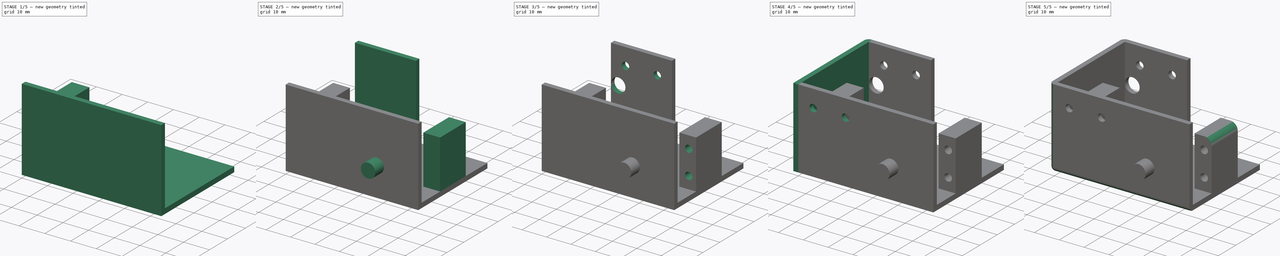
[diagram: build sequence overview — one tinted view per stage of 5, left to right]
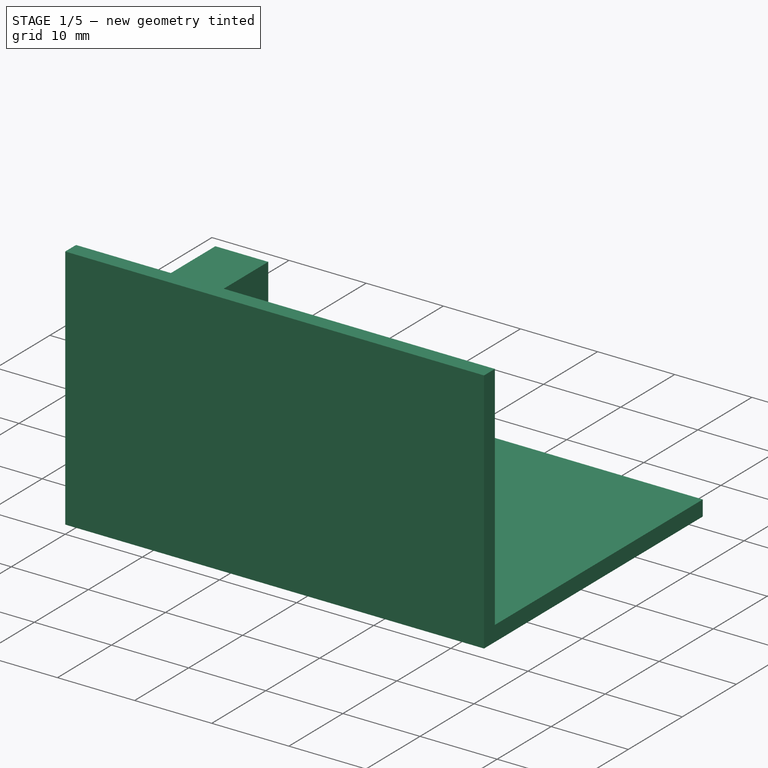
[diagram: stage 1 of 5 — iso view after this stage's code; geometry added in this stage tinted green]
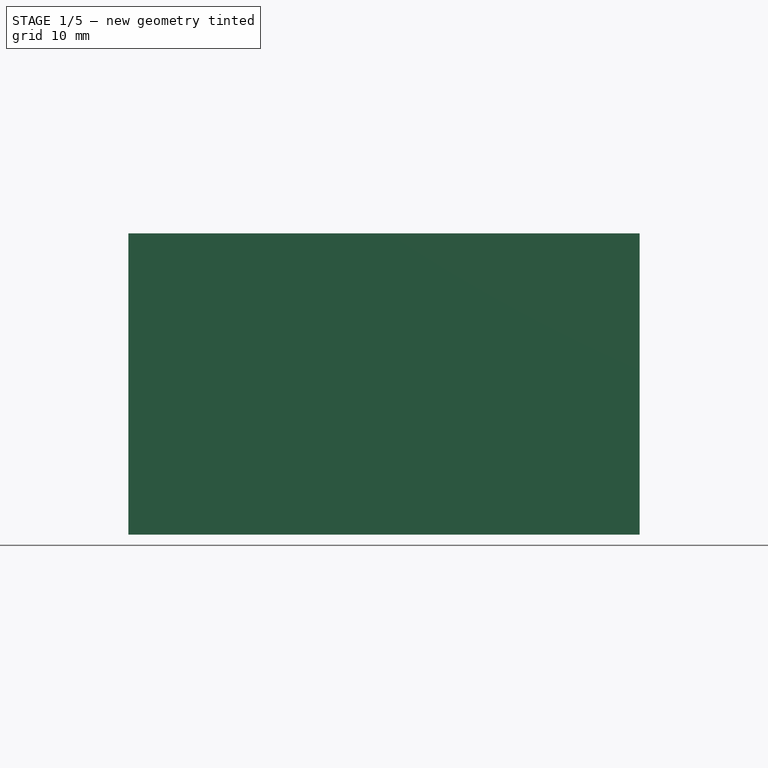
[diagram: stage 1 of 5 — front view after this stage's code; geometry added in this stage tinted green]
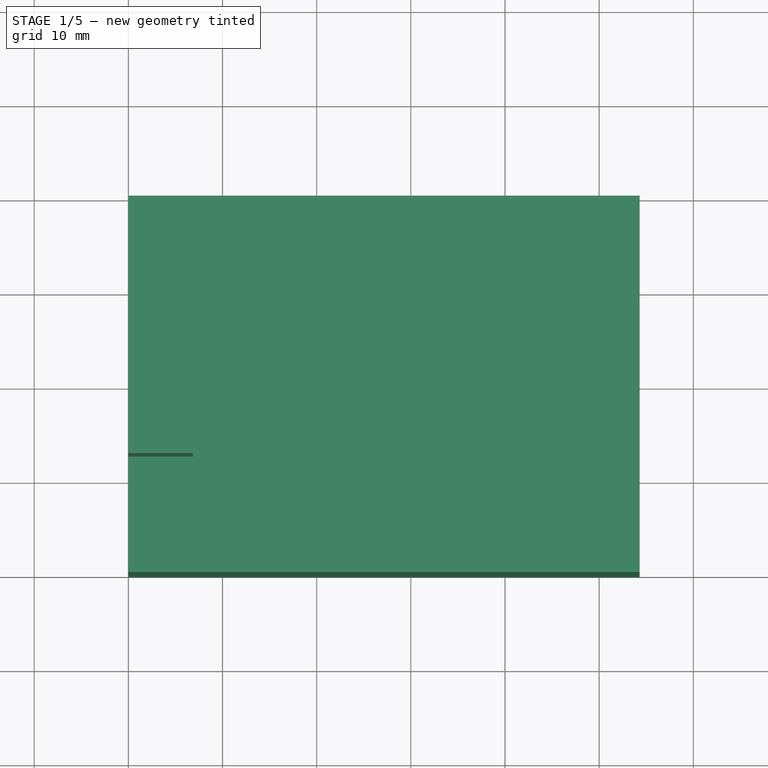
[diagram: stage 1 of 5 — top view after this stage's code; geometry added in this stage tinted green]
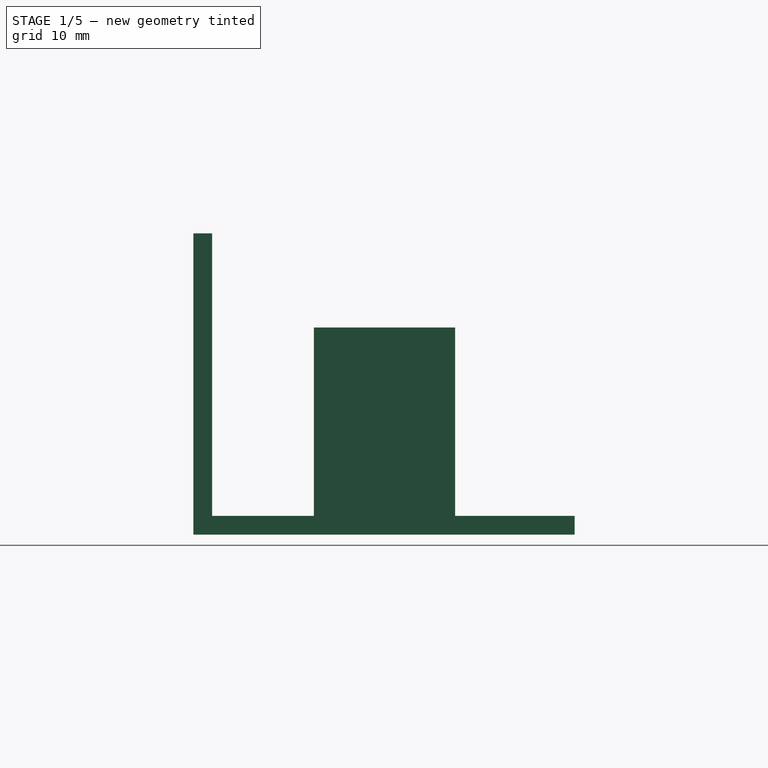
[diagram: stage 1 of 5 — right view after this stage's code; geometry added in this stage tinted green]
FCSTD DOCUMENT  (FreeCAD 0.20R29177 +426 (Git))
Label: 6R_NEW_hip
License: All rights reserved
LicenseURL: http://en.wikipedia.org/wiki/All_rights_reserved
objects: Sketcher::SketchObject×11, PartDesign::Pad×7, PartDesign::Pocket×4, PartDesign::Fillet×4, Spreadsheet::Sheet×1, PartDesign::Body×1
note: 42 computed .brp shape members not serialized (recipe doc carries the construction recipe); baked Part::Feature solids carry a one-line shape summary decoded from their .brp

FEATURE [Spreadsheet::Sheet] Spreadsheet
  cells = A1=tolerance; B1(tolerance)=0.2; A2=thickness; B2(thickness)=2; A3=servo_outer_x; B3(servo_x)=54.3; A4=servo_inner_x; B4(servo_inner_x)=40.2; A5=servo_y; B5(servo_y)=38.5; D5=sketch 41,5 real 38,0; A6=servo_z; B6(servo_z)=20; A7=foothold_hole_len; B7(foothold_hole_len)=40; A8=foothold_y_len; B8(foothold_y_len)=15; A9=foothold_y_pos; B9(foothold_y_pos)==25.8 + B2; C9=c; D9=sketch 27.8 real 25,1; A10=foothold_z_len; B10(foothold_z_len)==B6; C10=c; A11=foothold_x_len; B11(foothold_x_len)==(B3 - B4) / 2 - B1; C11=c; A12=upper_hole_z_pos; B12(upper_hole_z_pos)==15 + B2; C12=c; A13=lower_hole_z_pos; B13(lower_hole_z_pos)==5 + B2; C13=c; A14=hole_x_pos; B14(hole_x_pos)=-3; A15=hole_diameter; B15(hole_diameter)=3; A16=axis_x_pos; B16(axis_x_pos)=37.25; A17=axis_z_pos; B17(axis_z_pos)==10 + B2; A18=axis_y_pos; B18(axis_y_pos)=0; A19=axis_diameter; B19(axis_diameter)=5.9; A20=axis_length; B20(axis_length)=5; A21=plate_y_dim; B21(plate_y_dim)==B5 + B2; C21=c; A22=hip_front_half_inner; B22(hip_front_half_inner)==30 + B2; C22=c; A23=hib_back_half_outer; B23(hib_back_half_outer)=42; A24=hip_back_full_outer; B24(hip_back_full_outer)==2 * B22; A25=hip_front_half_inner_len; B25(hip_front_half_inner_len)=25
FEATURE [Sketcher::SketchObject] Sketch  label="basePlateSketch"
  FullyConstrained = true
  MapMode = 5
  Support = -> [XY_Plane]
  expr: Constraints[10] = Spreadsheet.servo_y
  expr: Constraints[11] = Spreadsheet.thickness
  expr: Constraints[9] = Spreadsheet.servo_x
  sketch-geometry (4):
    g0: LineSegment StartX=0 StartY=40.5 StartZ=0 EndX=54.3 EndY=40.5 EndZ=0
    g1: LineSegment StartX=54.3 StartY=40.5 StartZ=0 EndX=54.3 EndY=2 EndZ=0
    g2: LineSegment StartX=54.3 StartY=2 StartZ=0 EndX=0 EndY=2 EndZ=0
    g3: LineSegment StartX=0 StartY=2 StartZ=0 EndX=0 EndY=40.5 EndZ=0
  constraints (12):
    c: Coincident(g0,g1)
    c: Coincident(g1,g2)
    c: Coincident(g2,g3)
    c: Coincident(g3,g0)
    c: Horizontal(g0)
    c: Horizontal(g2)
    c: Vertical(g1)
    c: Vertical(g3)
    c: PointOnObject(g0,g-2)
    c: DistanceX(g2,g2) = 54.3
    c: DistanceY(g3,g3) = 38.5
    c: DistanceY(g-1,g2) = 2
FEATURE [PartDesign::Pad] Pad  label="basePlatePad"
  Direction = (0,0,1)
  Length = 2
  Length2 = 10
  Profile = -> Sketch
  ReferenceAxis = -> Sketch [N_Axis]
  Type = 0
  expr: Length = Spreadsheet.thickness
FEATURE [Sketcher::SketchObject] Sketch001  label="backPadSketch"
  ExternalGeometry = -> [Pad]
  FullyConstrained = true
  MapMode = 5
  Support = -> [XY_Plane]
  sketch-geometry (4):
    g0: LineSegment StartX=0 StartY=0 StartZ=0 EndX=54.3 EndY=0 EndZ=0
    g1: LineSegment StartX=54.3 StartY=0 StartZ=0 EndX=54.3 EndY=2 EndZ=0
    g2: LineSegment StartX=54.3 StartY=2 StartZ=0 EndX=0 EndY=2 EndZ=0
    g3: LineSegment StartX=0 StartY=2 StartZ=0 EndX=0 EndY=0 EndZ=0
  constraints (10):
    c: Coincident(g0,g1)
    c: Coincident(g1,g2)
    c: Coincident(g2,g3)
    c: Coincident(g3,g0)
    c: Horizontal(g0)
    c: Horizontal(g2)
    c: Vertical(g1)
    c: Vertical(g3)
    c: Coincident(g0,g-1)
    c: Coincident(g1,g-3)
FEATURE [Sketcher::SketchObject] Sketch003  label="leftFootholdSketch"
  FullyConstrained = true
  MapMode = 5
  Placement = pos=(0,0,2) rot=(0,0,1;0rad)
  expr: Constraints[10] = Spreadsheet.foothold_y_len
  expr: Constraints[11] = Spreadsheet.foothold_x_len
  expr: Constraints[9] = Spreadsheet.foothold_y_pos
  sketch-geometry (4):
    g0: LineSegment StartX=0 StartY=27.8 StartZ=0 EndX=6.85 EndY=27.8 EndZ=0
    g1: LineSegment StartX=6.85 StartY=27.8 StartZ=0 EndX=6.85 EndY=12.8 EndZ=0
    g2: LineSegment StartX=6.85 StartY=12.8 StartZ=0 EndX=0 EndY=12.8 EndZ=0
    g3: LineSegment StartX=0 StartY=12.8 StartZ=0 EndX=0 EndY=27.8 EndZ=0
  constraints (12):
    c: Coincident(g0,g1)
    c: Coincident(g1,g2)
    c: Coincident(g2,g3)
    c: Coincident(g3,g0)
    c: Horizontal(g0)
    c: Horizontal(g2)
    c: Vertical(g1)
    c: Vertical(g3)
    c: PointOnObject(g0,g-2)
    c: DistanceY(g-1,g0) = 27.8
    c: DistanceY(g2,g0) = 15
    c: DistanceX(g2,g1) = 6.85
FEATURE [PartDesign::Pad] Pad001  label="leftFootholdPad"
  BaseFeature = -> Pad
  Direction = (0,0,1)
  Length = 20
  Length2 = 10
  Profile = -> Sketch003
  ReferenceAxis = -> Sketch003 [N_Axis]
  Type = 0
  expr: Length = Spreadsheet.foothold_z_len
FEATURE [PartDesign::Pad] Pad003  label="backPad"
  BaseFeature = -> Pad001
  Direction = (0,0,1)
  Length = 32
  Length2 = 10
  Profile = -> Sketch001
  ReferenceAxis = -> Sketch001 [N_Axis]
  Type = 0
  expr: Length = Spreadsheet.hip_front_half_inner
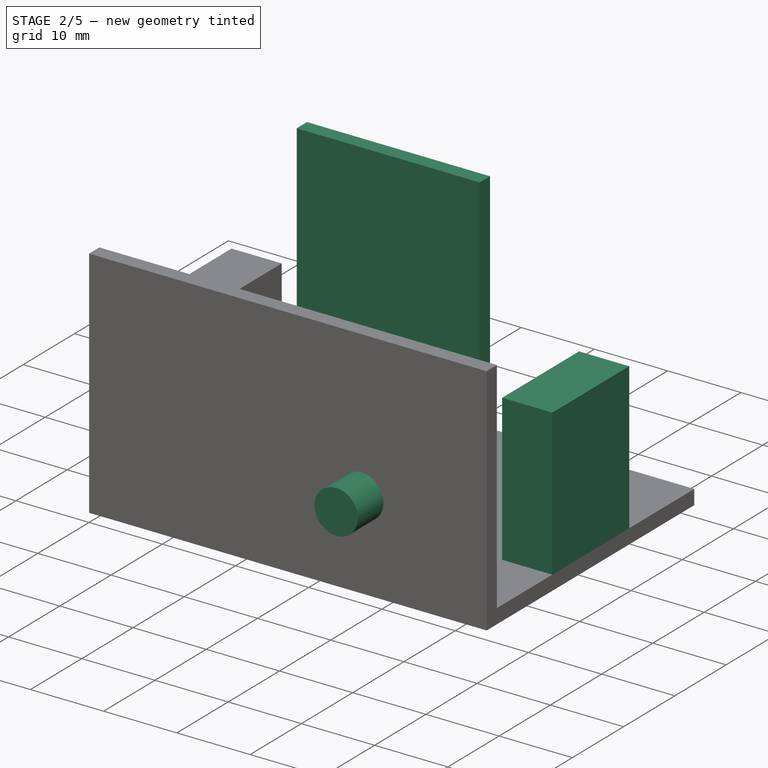
[diagram: stage 2 of 5 — iso view after this stage's code; geometry added in this stage tinted green]
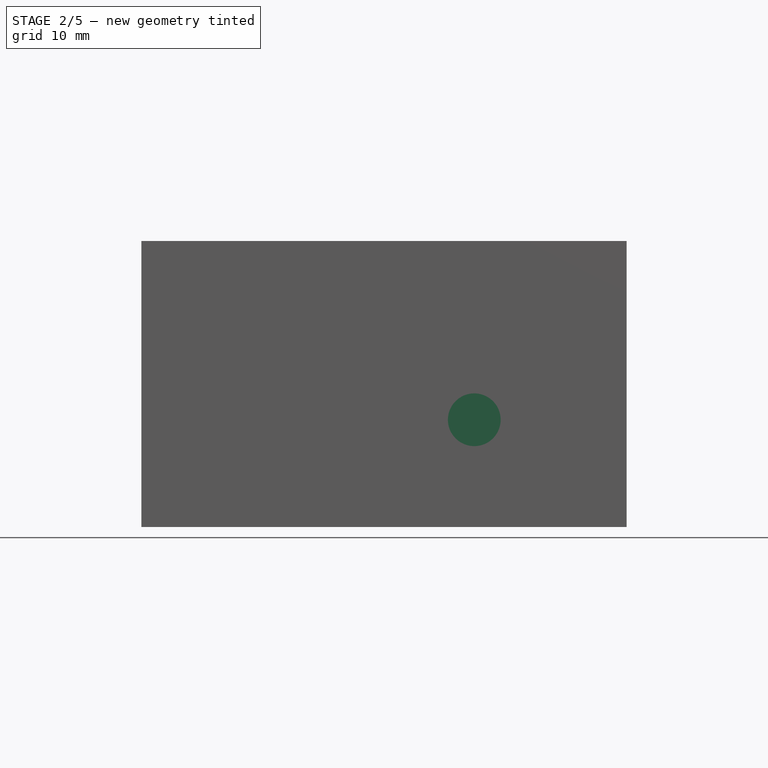
[diagram: stage 2 of 5 — front view after this stage's code; geometry added in this stage tinted green]
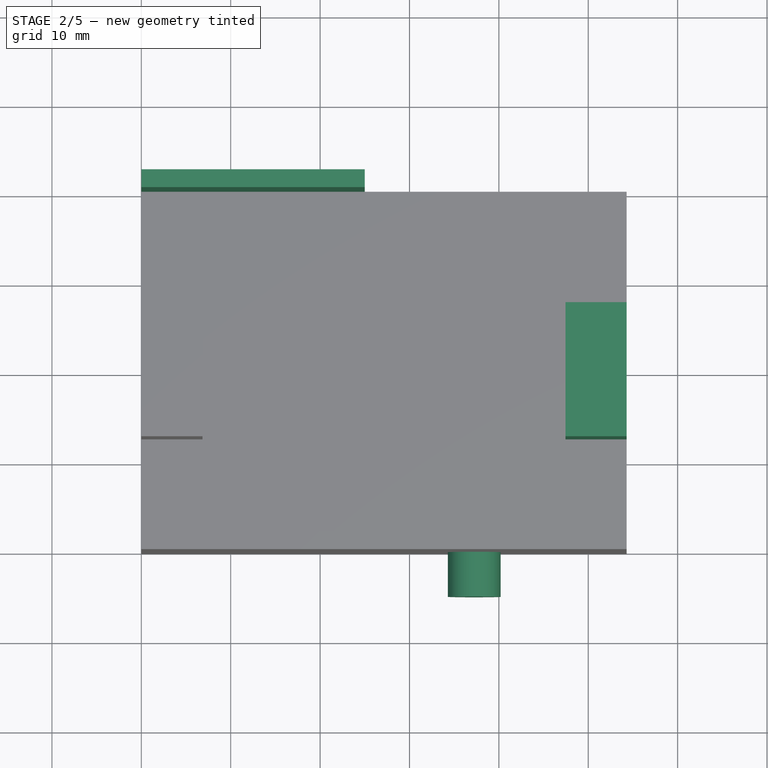
[diagram: stage 2 of 5 — top view after this stage's code; geometry added in this stage tinted green]
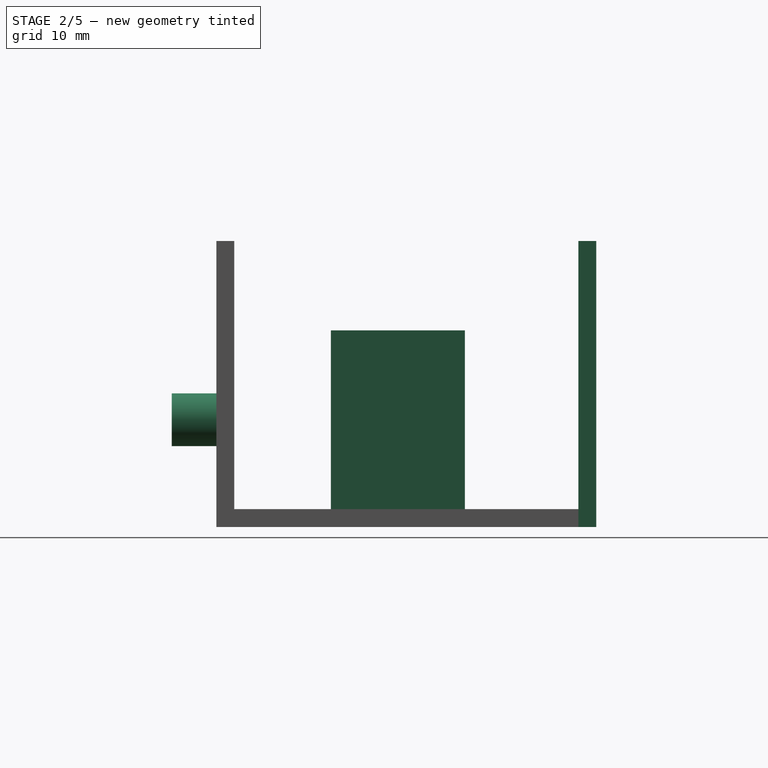
[diagram: stage 2 of 5 — right view after this stage's code; geometry added in this stage tinted green]
FEATURE [Sketcher::SketchObject] Sketch005  label="rightFootholdSketch"
  ExternalGeometry = -> [Pad003]
  FullyConstrained = true
  MapMode = 5
  Placement = pos=(0,0,2) rot=(0,0,1;0rad)
  Support = -> [Pad003]
  expr: Constraints[10] = Spreadsheet.foothold_y_pos
  expr: Constraints[8] = Spreadsheet.foothold_y_len
  expr: Constraints[9] = Spreadsheet.foothold_x_len
  sketch-geometry (4):
    g0: LineSegment StartX=47.45 StartY=27.8 StartZ=0 EndX=54.3 EndY=27.8 EndZ=0
    g1: LineSegment StartX=54.3 StartY=27.8 StartZ=0 EndX=54.3 EndY=12.8 EndZ=0
    g2: LineSegment StartX=54.3 StartY=12.8 StartZ=0 EndX=47.45 EndY=12.8 EndZ=0
    g3: LineSegment StartX=47.45 StartY=12.8 StartZ=0 EndX=47.45 EndY=27.8 EndZ=0
  constraints (12):
    c: Coincident(g0,g1)
    c: Coincident(g1,g2)
    c: Coincident(g2,g3)
    c: Coincident(g3,g0)
    c: Horizontal(g0)
    c: Horizontal(g2)
    c: Vertical(g1)
    c: Vertical(g3)
    c: DistanceY(g1,g0) = 15
    c: DistanceX(g0,g0) = 6.85
    c: DistanceY(g-1,g0) = 27.8
    c: Vertical(g0,g-3)
FEATURE [PartDesign::Pad] Pad004  label="rightFootholdPad"
  BaseFeature = -> Pad003
  Direction = (0,0,1)
  Length = 20
  Length2 = 10
  Profile = -> Sketch005
  ReferenceAxis = -> Sketch005 [N_Axis]
  Type = 0
  expr: Length = Spreadsheet.foothold_z_len
FEATURE [Sketcher::SketchObject] Sketch002  label="backAxisSketch"
  FullyConstrained = true
  MapMode = 5
  Placement = pos=(0,0,0) rot=(1,0,0;1.5708rad)
  Support = -> [Pad004]
  expr: Constraints[0] = Spreadsheet.axis_diameter
  expr: Constraints[1] = Spreadsheet.axis_x_pos
  expr: Constraints[2] = Spreadsheet.axis_z_pos
  sketch-geometry (1):
    g0: Circle CenterX=37.25 CenterY=12 CenterZ=0 NormalX=0 NormalY=0 NormalZ=1 AngleXU=0 Radius=2.95
  constraints (3):
    c: Diameter(g0) = 5.9
    c: DistanceX(g-1,g0) = 37.25
    c: DistanceY(g-1,g0) = 12
FEATURE [PartDesign::Pad] Pad005  label="backAxisPad"
  BaseFeature = -> Pad004
  Direction = (0,-1,2e-16)
  Length = 5
  Length2 = 10
  Profile = -> Sketch002
  ReferenceAxis = -> Sketch002 [N_Axis]
  Type = 0
  expr: Length = Spreadsheet.axis_length
FEATURE [Sketcher::SketchObject] Sketch007  label="frontPlateSketch"
  FullyConstrained = true
  MapMode = 5
  Placement = pos=(0,40.5,0) rot=(0,0.707107,0.707107;3.14159rad)
  Support = -> [Pad005]
  expr: Constraints[10] = Spreadsheet.hip_front_half_inner_len
  expr: Constraints[9] = Spreadsheet.hip_front_half_inner
  sketch-geometry (4):
    g0: LineSegment StartX=-25 StartY=32 StartZ=0 EndX=0 EndY=32 EndZ=0
    g1: LineSegment StartX=0 StartY=32 StartZ=0 EndX=0 EndY=0 EndZ=0
    g2: LineSegment StartX=0 StartY=0 StartZ=0 EndX=-25 EndY=0 EndZ=0
    g3: LineSegment StartX=-25 StartY=0 StartZ=0 EndX=-25 EndY=32 EndZ=0
  constraints (11):
    c: Coincident(g0,g1)
    c: Coincident(g1,g2)
    c: Coincident(g2,g3)
    c: Coincident(g3,g0)
    c: Horizontal(g0)
    c: Horizontal(g2)
    c: Vertical(g1)
    c: Vertical(g3)
    c: Coincident(g1,g-1)
    c: DistanceY(g1,g1) = 32
    c: DistanceX(g0,g0) = 25
FEATURE [PartDesign::Pad] Pad006  label="frontPlatePad"
  BaseFeature = -> Pad005
  Direction = (0,1,-2e-16)
  Length = 2
  Length2 = 10
  Profile = -> Sketch007
  ReferenceAxis = -> Sketch007 [N_Axis]
  Type = 0
  expr: Length = Spreadsheet.thickness
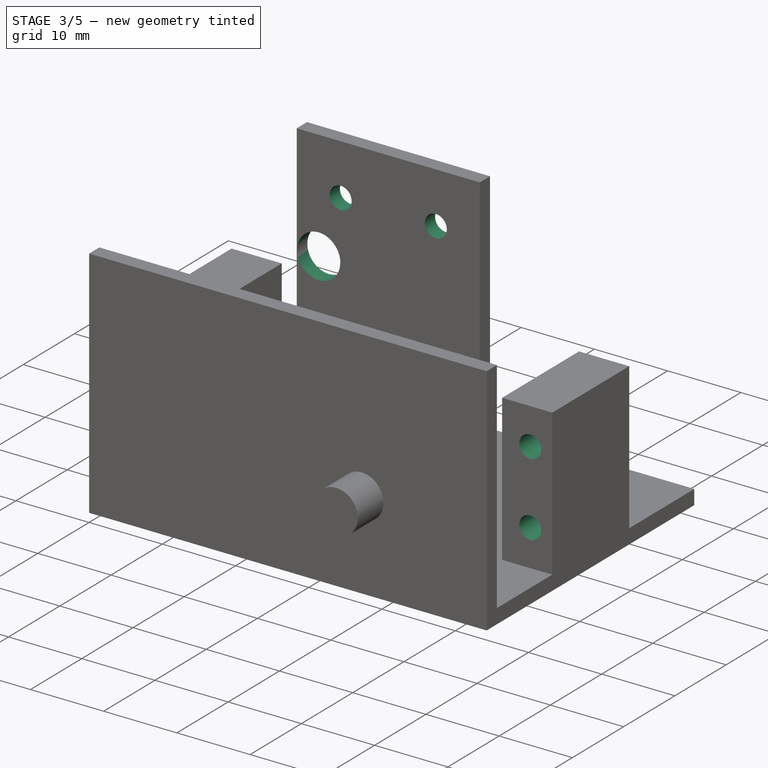
[diagram: stage 3 of 5 — iso view after this stage's code; geometry added in this stage tinted green]
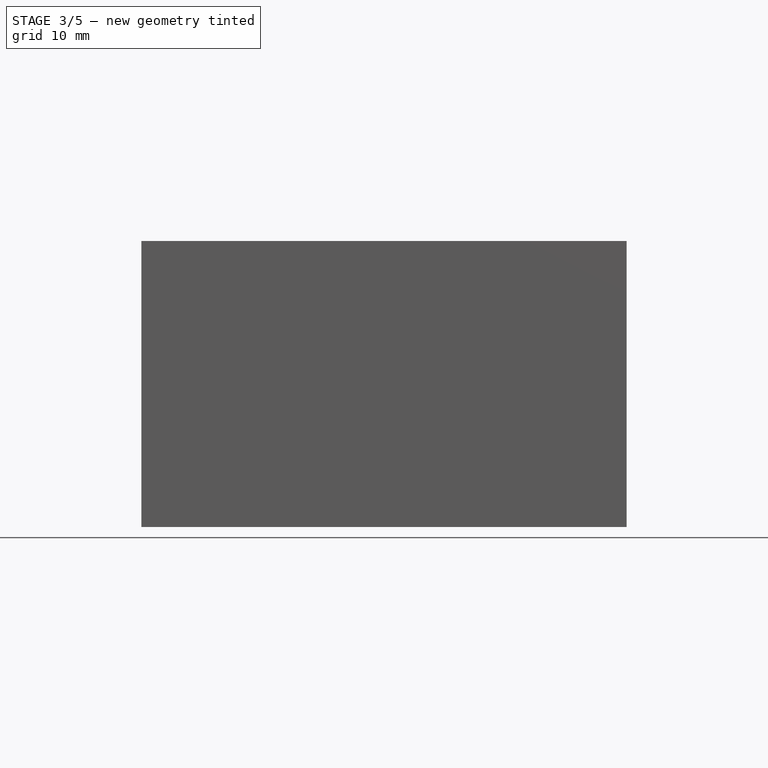
[diagram: stage 3 of 5 — front view after this stage's code; geometry added in this stage tinted green]
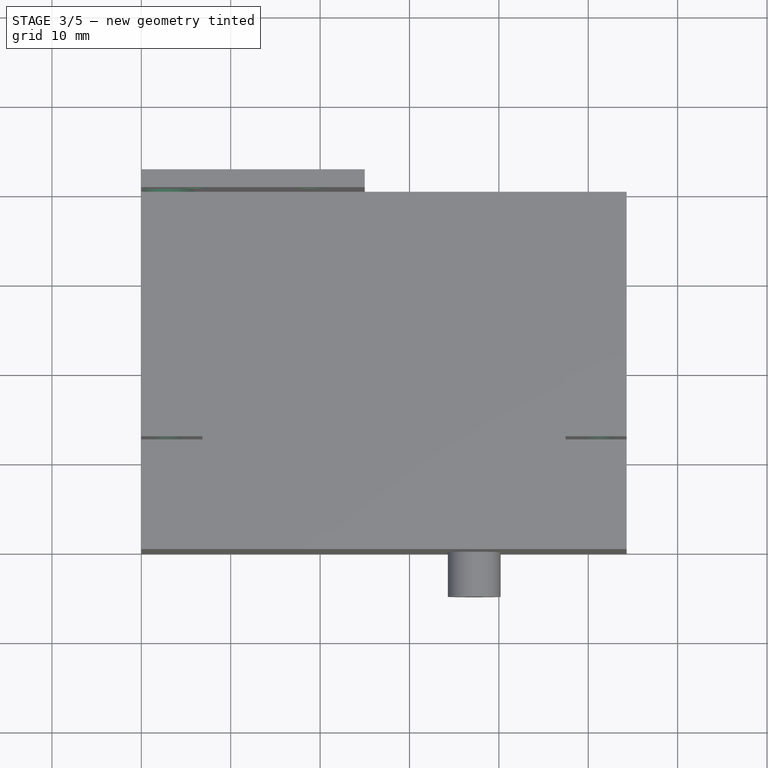
[diagram: stage 3 of 5 — top view after this stage's code; geometry added in this stage tinted green]
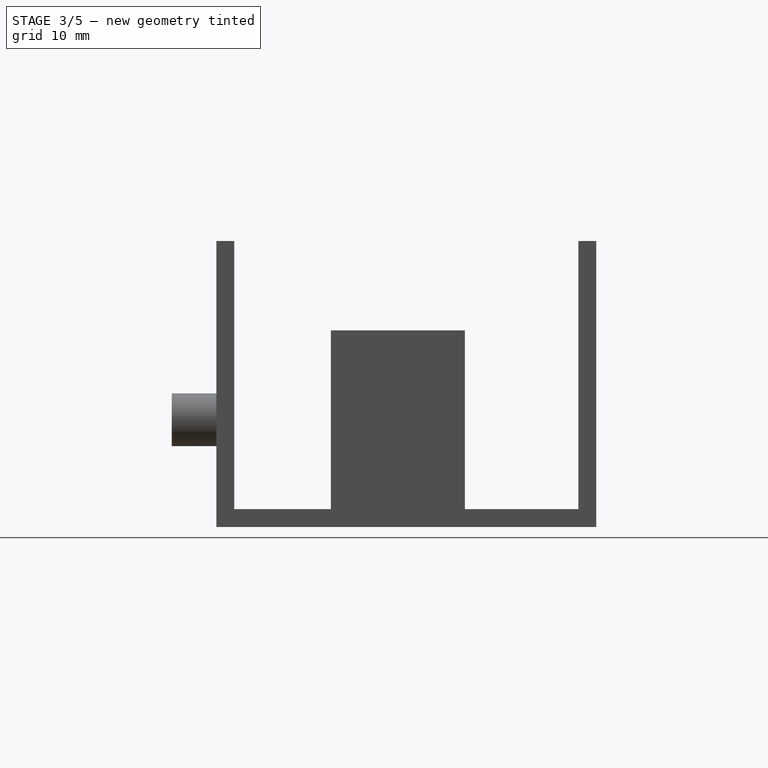
[diagram: stage 3 of 5 — right view after this stage's code; geometry added in this stage tinted green]
FEATURE [Sketcher::SketchObject] Sketch006  label="rightFootholeSketch"
  ExternalGeometry = -> [Pad006]
  FullyConstrained = true
  MapMode = 5
  Placement = pos=(0,12.8,0) rot=(1,0,0;1.5708rad)
  Support = -> [Pad006]
  expr: Constraints[0] = Spreadsheet.hole_diameter
  expr: Constraints[1] = Spreadsheet.hole_diameter
  expr: Constraints[2] = Spreadsheet.lower_hole_z_pos
  expr: Constraints[3] = Spreadsheet.upper_hole_z_pos
  expr: Constraints[4] = -Spreadsheet.hole_x_pos
  sketch-geometry (2):
    g0: Circle CenterX=51.3 CenterY=17 CenterZ=0 NormalX=0 NormalY=0 NormalZ=1 AngleXU=0 Radius=1.5
    g1: Circle CenterX=51.3 CenterY=7 CenterZ=0 NormalX=0 NormalY=0 NormalZ=1 AngleXU=0 Radius=1.5
  constraints (6):
    c: Diameter(g1) = 3
    c: Diameter(g0) = 3
    c: DistanceY(g-4,g1) = 7
    c: DistanceY(g-4,g0) = 17
    c: DistanceX(g1,g-4) = 3
    c: Vertical(g1,g0)
FEATURE [PartDesign::Pocket] Pocket  label="rightFootholePocket"
  BaseFeature = -> Pad006
  Direction = (0,1,-2e-16)
  Length = 15
  Length2 = 5
  Profile = -> Sketch006
  ReferenceAxis = -> Sketch006 [N_Axis]
  Type = 0
  expr: Length = Spreadsheet.foothold_y_len
FEATURE [Sketcher::SketchObject] Sketch004  label="leftFootholeSketch"
  FullyConstrained = true
  MapMode = 5
  Placement = pos=(0,12.8,0) rot=(1,0,0;1.5708rad)
  Support = -> [Pocket]
  expr: Constraints[0] = Spreadsheet.upper_hole_z_pos
  expr: Constraints[1] = Spreadsheet.lower_hole_z_pos
  expr: Constraints[2] = Spreadsheet.hole_x_pos
  expr: Constraints[4] = Spreadsheet.hole_diameter
  expr: Constraints[5] = Spreadsheet.hole_diameter
  sketch-geometry (2):
    g0: Circle CenterX=3 CenterY=17 CenterZ=0 NormalX=0 NormalY=0 NormalZ=1 AngleXU=0 Radius=1.5
    g1: Circle CenterX=3 CenterY=7 CenterZ=0 NormalX=0 NormalY=0 NormalZ=1 AngleXU=0 Radius=1.5
  constraints (6):
    c: DistanceY(g-1,g0) = 17
    c: DistanceY(g-1,g1) = 7
    c: DistanceX(g1,g-1) = -3
    c: Vertical(g0,g1)
    c: Diameter(g1) = 3
    c: Diameter(g0) = 3
FEATURE [PartDesign::Pocket] Pocket001  label="leftFootholePocket"
  BaseFeature = -> Pocket
  Direction = (0,1,-2e-16)
  Length = 20
  Length2 = 5
  Profile = -> Sketch004
  ReferenceAxis = -> Sketch004 [N_Axis]
  Type = 0
  expr: Length = 20
FEATURE [Sketcher::SketchObject] Sketch009  label="frontHoleSketch"
  ExternalGeometry = -> [Pocket001]
  FullyConstrained = true
  MapMode = 5
  Placement = pos=(0,42.5,-9.4e-15) rot=(0,0.707107,0.707107;3.14159rad)
  Support = -> [Pocket001]
  expr: Constraints[10] = Spreadsheet.lower_hole_z_pos
  expr: Constraints[11] = Spreadsheet.upper_hole_z_pos
  expr: Constraints[5] = Spreadsheet.hole_diameter
  sketch-geometry (4):
    g0: Circle CenterX=-6 CenterY=25 CenterZ=0 NormalX=0 NormalY=0 NormalZ=1 AngleXU=0 Radius=1.5
    g1: Circle CenterX=-19 CenterY=25 CenterZ=0 NormalX=0 NormalY=0 NormalZ=1 AngleXU=0 Radius=1.5
    g2: Circle CenterX=-3 CenterY=7 CenterZ=0 NormalX=0 NormalY=0 NormalZ=1 AngleXU=0 Radius=2.95
    g3: Circle CenterX=-3 CenterY=17 CenterZ=0 NormalX=0 NormalY=0 NormalZ=1 AngleXU=0 Radius=2.95
  constraints (12):
    c: Horizontal(g0,g1)
    c: DistanceY(g-3,g1) = 25
    c: DistanceX(g1,g0) = 13
    c: DistanceX(g-3,g1) = 6
    c: Equal(g0,g1)
    c: Diameter(g0) = 3
    c: Equal(g3,g2)
    c: Diameter(g3) = 5.9
    c: Vertical(g2,g3)
    c: DistanceX(g2,g-1) = 3
    c: DistanceY(g-1,g2) = 7
    c: DistanceY(g-1,g3) = 17
FEATURE [PartDesign::Pocket] Pocket002  label="frontHolePocket"
  BaseFeature = -> Pocket001
  Direction = (0,-1,2e-16)
  Length = 2
  Length2 = 5
  Profile = -> Sketch009
  ReferenceAxis = -> Sketch009 [N_Axis]
  Type = 0
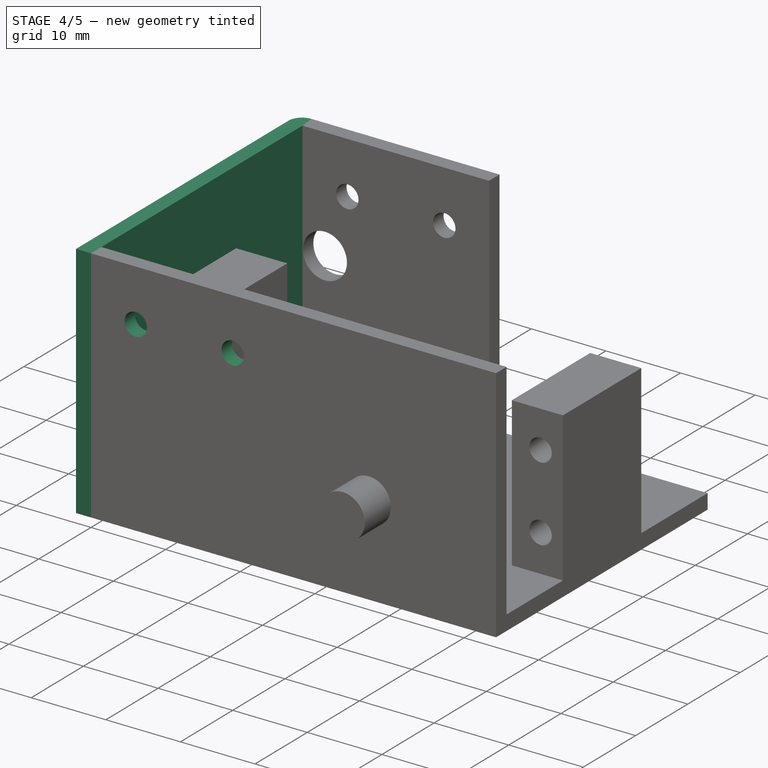
[diagram: stage 4 of 5 — iso view after this stage's code; geometry added in this stage tinted green]
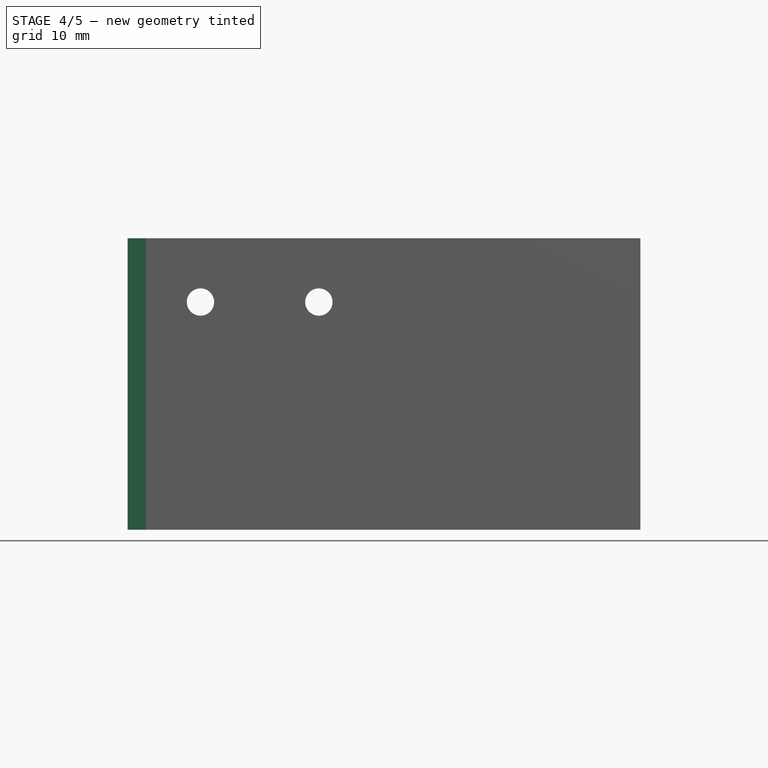
[diagram: stage 4 of 5 — front view after this stage's code; geometry added in this stage tinted green]
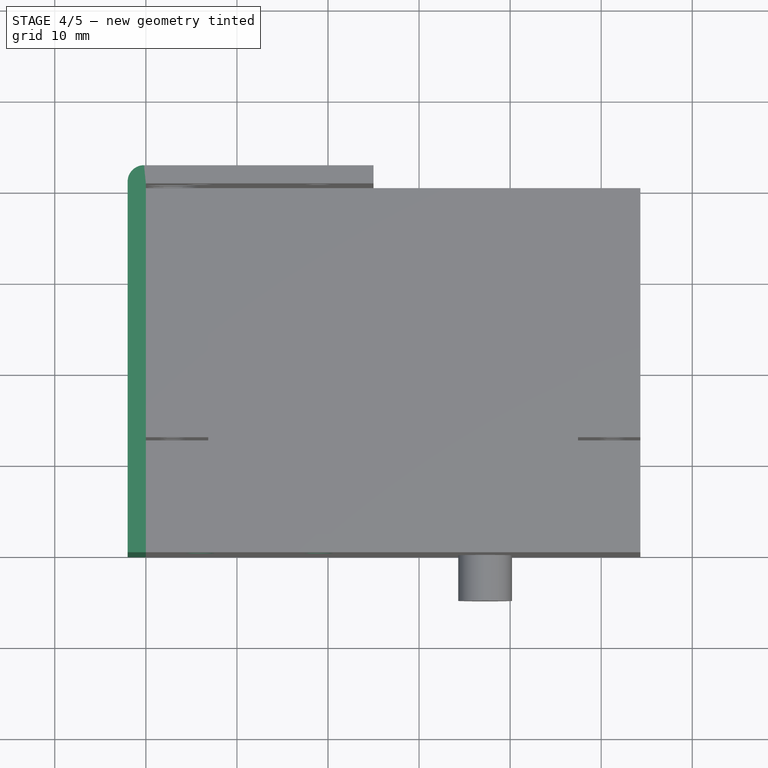
[diagram: stage 4 of 5 — top view after this stage's code; geometry added in this stage tinted green]
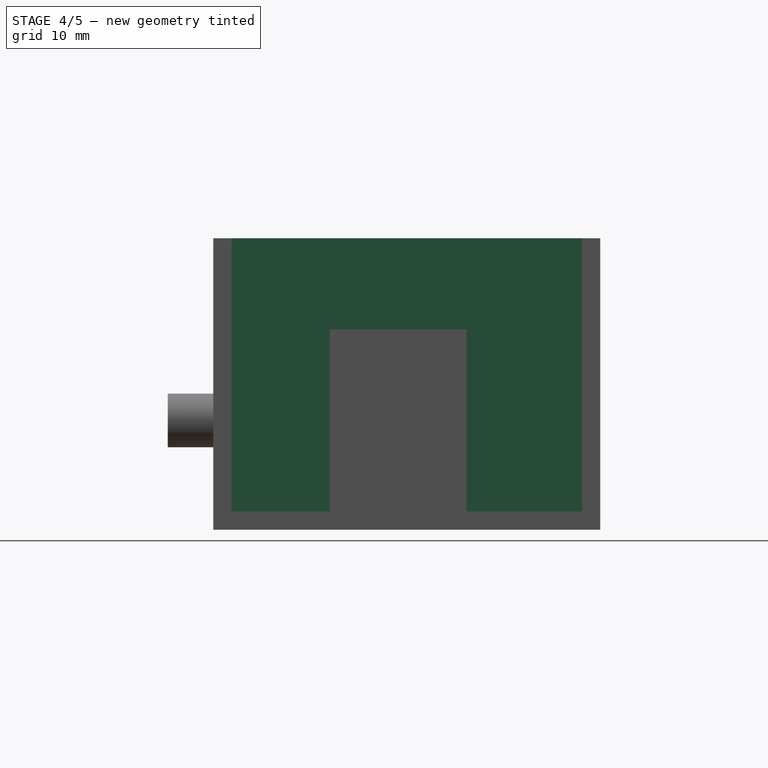
[diagram: stage 4 of 5 — right view after this stage's code; geometry added in this stage tinted green]
FEATURE [Sketcher::SketchObject] Sketch008  label="footholdBackSketch"
  ExternalGeometry = -> [Pocket002]
  FullyConstrained = false
  MapMode = 5
  Placement = pos=(0,0,0) rot=(1,0,0;1.5708rad)
  Support = -> [XZ_Plane]
  expr: Constraints[2] = 3
  sketch-geometry (2):
    g0: Circle CenterX=19 CenterY=25 CenterZ=0 NormalX=0 NormalY=0 NormalZ=1 AngleXU=0 Radius=1.5
    g1: Circle CenterX=6 CenterY=25 CenterZ=0 NormalX=0 NormalY=0 NormalZ=1 AngleXU=0 Radius=1.5
  constraints (4):
    c: Horizontal(g0,g1)
    c: Equal(g0,g1)
    c: Diameter(g0) = 3
    c: DistanceX(g1,g0) = 13
FEATURE [PartDesign::Pocket] Pocket003  label="footholdBackPocket"
  BaseFeature = -> Pocket002
  Direction = (0,1,2e-16)
  Length = 3
  Length2 = 5
  Profile = -> Sketch008
  ReferenceAxis = -> Sketch008 [N_Axis]
  Type = 0
FEATURE [Sketcher::SketchObject] Sketch010
  ExternalGeometry = -> [Pocket003]
  FullyConstrained = true
  MapMode = 5
  Placement = pos=(0,0,0) rot=(0.57735,-0.57735,-0.57735;2.0944rad)
  Support = -> [Pocket003]
  sketch-geometry (4):
    g0: LineSegment StartX=0 StartY=0 StartZ=0 EndX=-42.5 EndY=0 EndZ=0
    g1: LineSegment StartX=-42.5 StartY=0 StartZ=0 EndX=-42.5 EndY=32 EndZ=0
    g2: LineSegment StartX=-42.5 StartY=32 StartZ=0 EndX=0 EndY=32 EndZ=0
    g3: LineSegment StartX=0 StartY=32 StartZ=0 EndX=0 EndY=0 EndZ=0
  constraints (10):
    c: Coincident(g0,g1)
    c: Coincident(g1,g2)
    c: Coincident(g2,g3)
    c: Coincident(g3,g0)
    c: Horizontal(g0)
    c: Horizontal(g2)
    c: Vertical(g1)
    c: Vertical(g3)
    c: Coincident(g0,g-1)
    c: Coincident(g1,g-3)
FEATURE [PartDesign::Pad] Pad007
  BaseFeature = -> Pocket003
  Direction = (-1,0,0)
  Length = 2
  Length2 = 10
  Profile = -> Sketch010
  ReferenceAxis = -> Sketch010 [N_Axis]
  Type = 0
  expr: Length = Spreadsheet.thickness
FEATURE [PartDesign::Fillet] Fillet
  Base = -> Pad007 [Edge88]
  BaseFeature = -> Pad007
  Radius = 1.8
  SupportTransform = false
  UseAllEdges = false
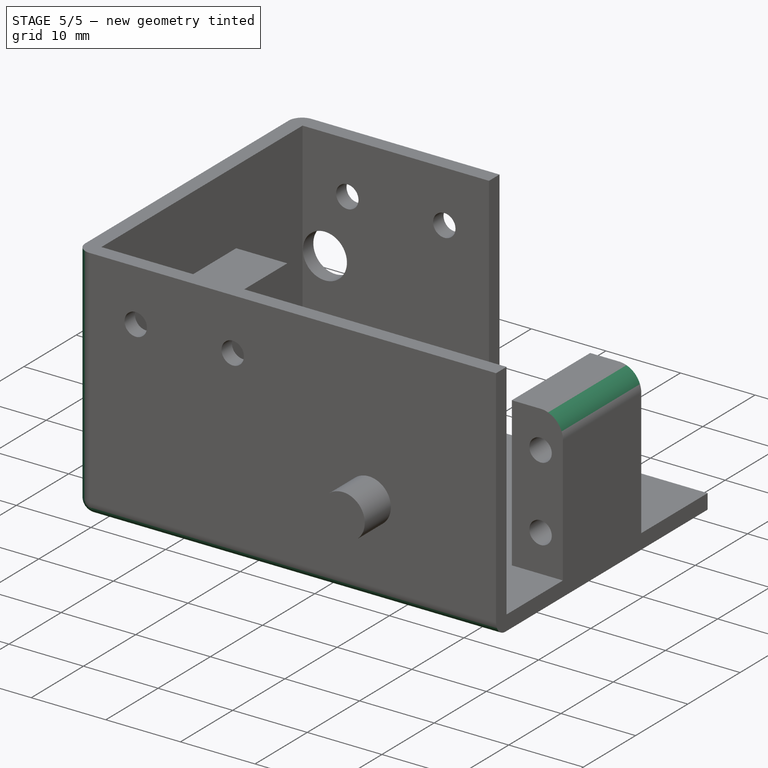
[diagram: stage 5 of 5 — iso view after this stage's code; geometry added in this stage tinted green]
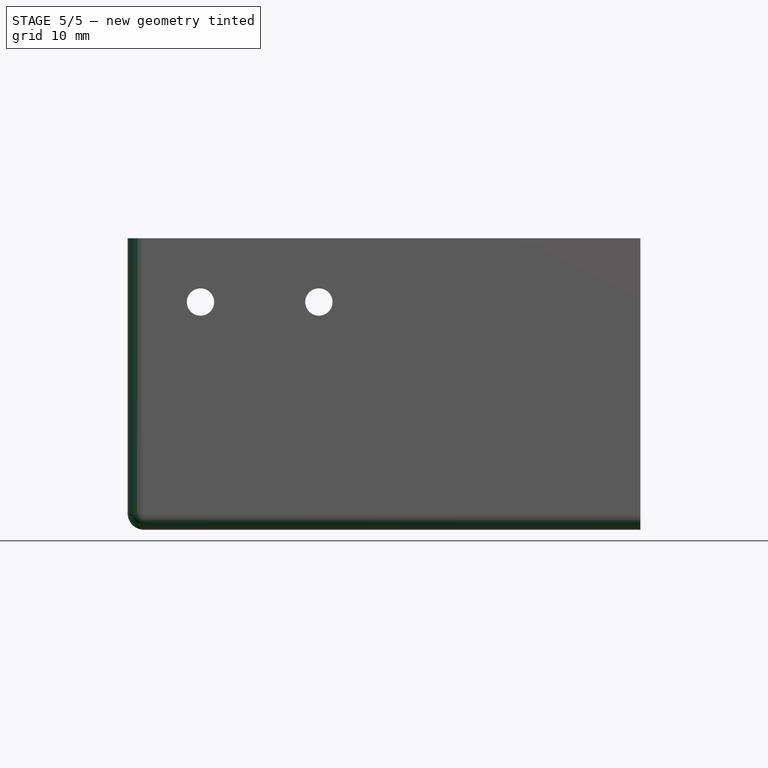
[diagram: stage 5 of 5 — front view after this stage's code; geometry added in this stage tinted green]
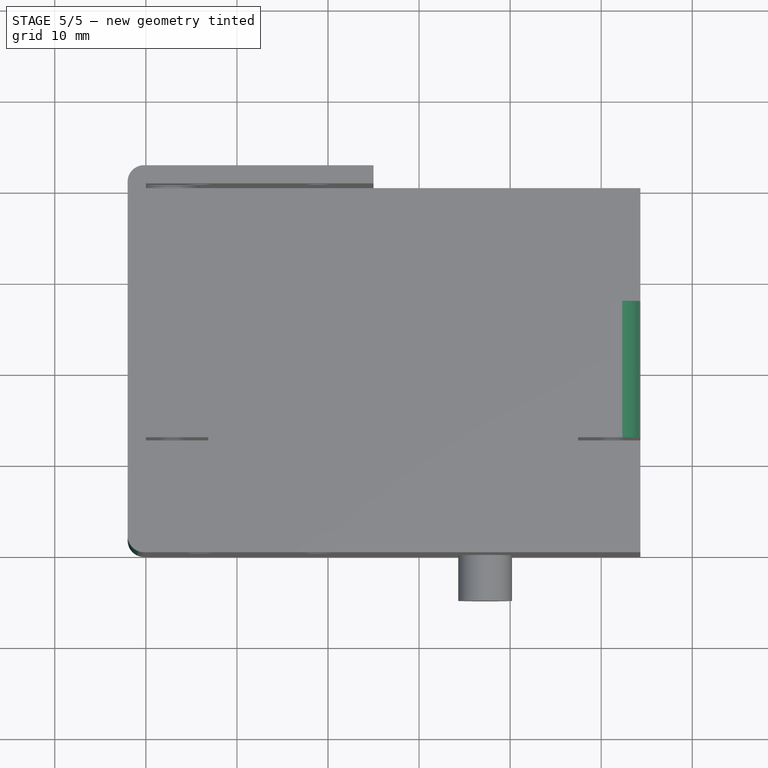
[diagram: stage 5 of 5 — top view after this stage's code; geometry added in this stage tinted green]
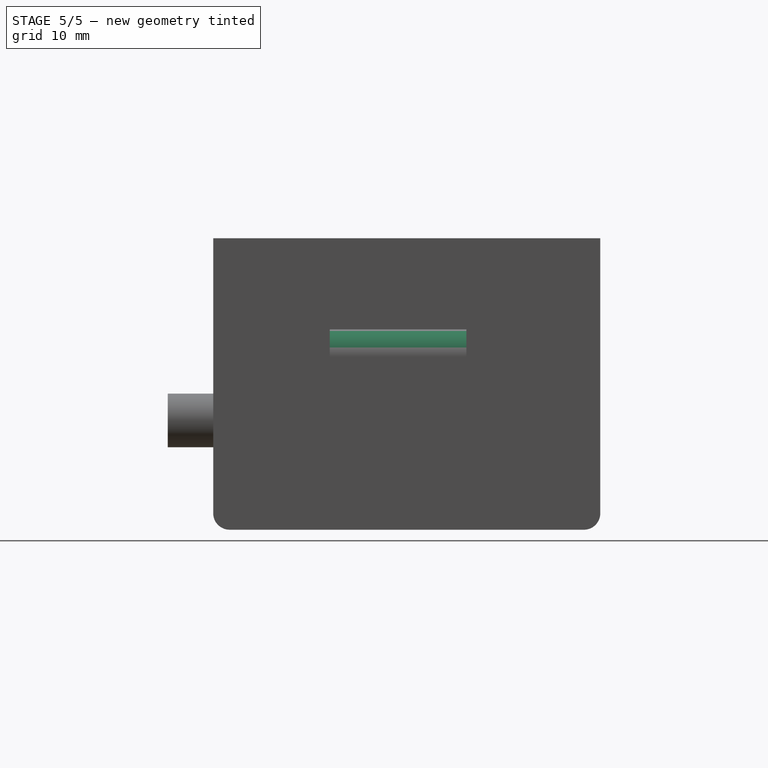
[diagram: stage 5 of 5 — right view after this stage's code; geometry added in this stage tinted green]
FEATURE [PartDesign::Fillet] Fillet001
  Base = -> Fillet [Edge16]
  BaseFeature = -> Fillet
  Radius = 1.8
  SupportTransform = false
  UseAllEdges = false
FEATURE [PartDesign::Fillet] Fillet002
  Base = -> Fillet001 [Edge1]
  BaseFeature = -> Fillet001
  Radius = 1.8
  SupportTransform = false
  UseAllEdges = false
FEATURE [PartDesign::Fillet] Fillet003
  Base = -> Fillet002 [Edge79]
  BaseFeature = -> Fillet002
  Radius = 3
  SupportTransform = false
  UseAllEdges = false
FEATURE [PartDesign::Body] Body
  Group = -> [Sketch,Pad,Sketch001,Sketch002,Sketch003,Sketch004,Sketch005,Sketch006,Sketch007,Sketch008,Pad001,Pad003,Pad004,Pad005,Pad006,Pocket,Pocket001,Sketch009,Pocket002,Pocket003,Sketch010,Pad007,Fillet,Fillet001,Fillet002,Fillet003]
  Origin = -> Origin
  Tip = -> Fillet003
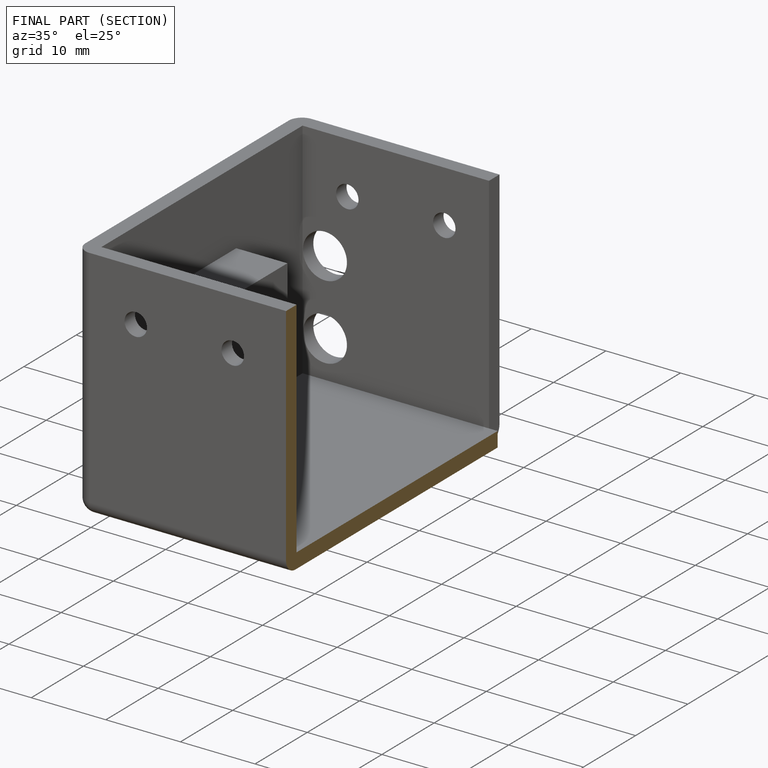
[diagram: finished part — half-section view (interior)]
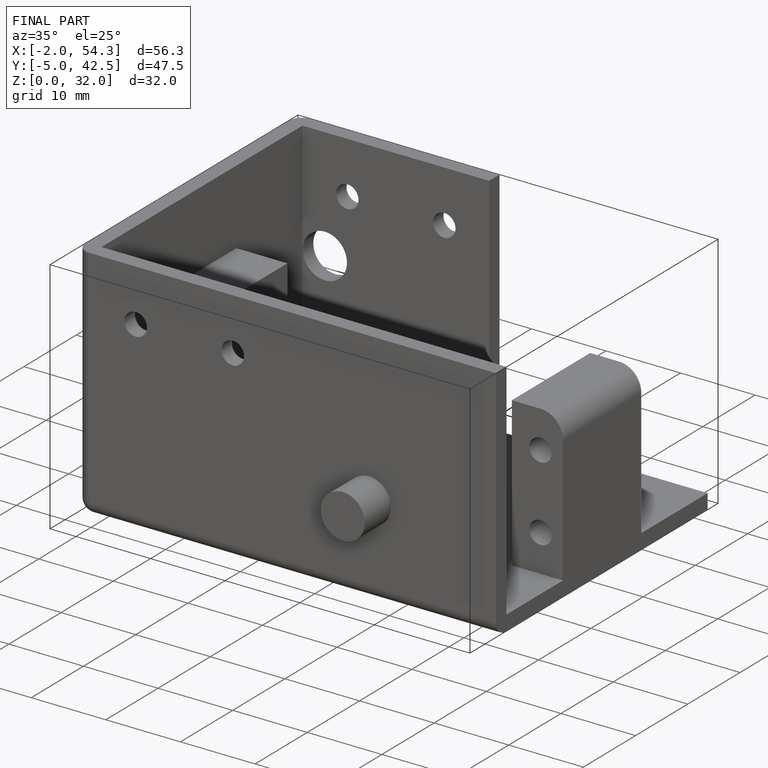
[diagram: finished part — iso view with bounding-box wireframe]
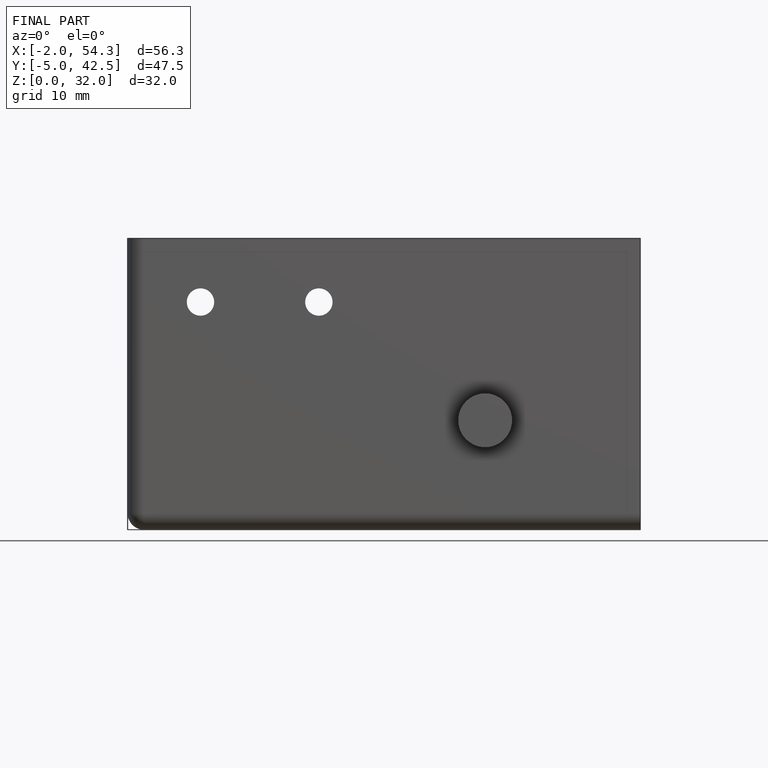
[diagram: finished part — front view with bounding-box wireframe]
